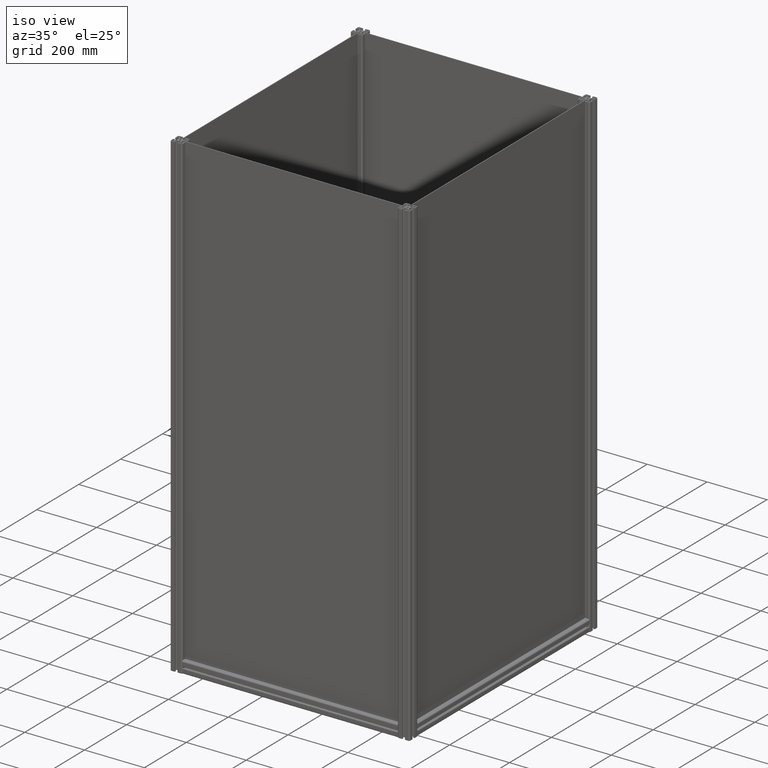
[diagram: clean part render]
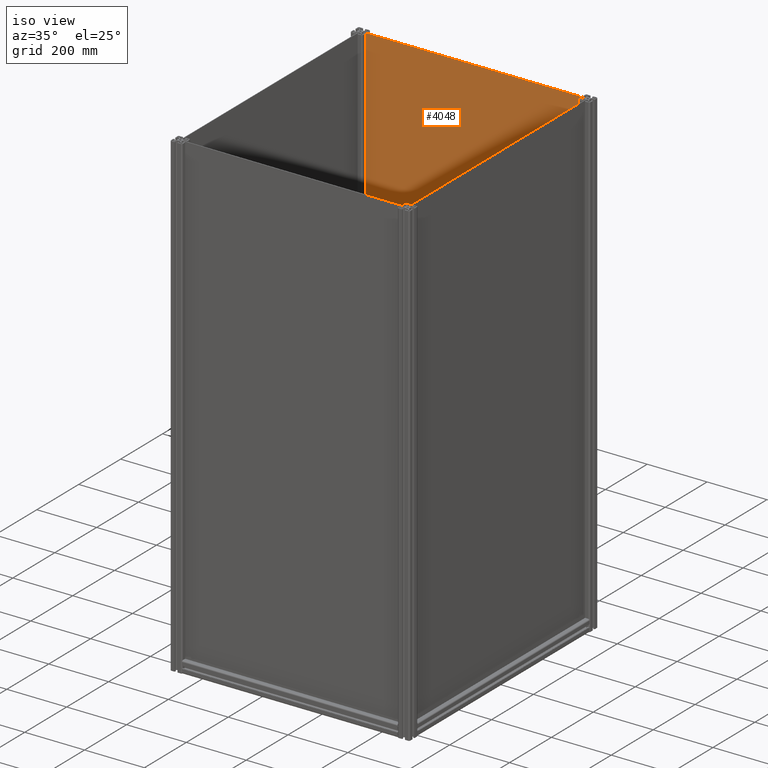
[diagram: same view with one face highlighted and labeled with its STEP entity id]
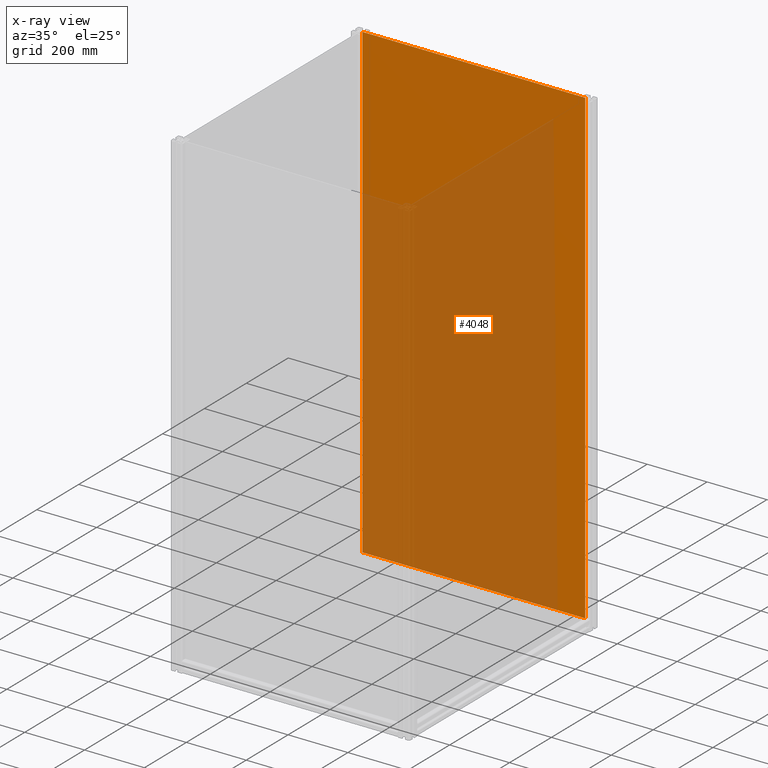
[diagram: x-ray of the same camera — body ghosted, the highlighted face saturated]
A machine part, iso view. The second image highlights one B-rep face of the part: STEP entity #4048.
The next image is the same camera in x-ray: the body ghosted, the highlighted face saturated — about 68% of this face is hidden behind the body in this view.
In plain terms, the highlighted planar face has unit normal (0, 1, 0).
Its self-contained STEP definition (entity closure, byte-faithful):
#478 = DIRECTION ( 'NONE',  ( 1.412138164112384449E-16, 1.000000000000000000, -0.000000000000000000 ) ) ;
#638 = EDGE_LOOP ( 'NONE', ( #16565, #2720, #821, #2079 ) ) ;
#821 = ORIENTED_EDGE ( 'NONE', *, *, #15634, .F. ) ;
#828 = AXIS2_PLACEMENT_3D ( 'NONE', #9908, #3699, #3489 ) ;
#986 = LINE ( 'NONE', #16158, #12035 ) ;
#1047 = EDGE_CURVE ( 'NONE', #14174, #8640, #16370, .T. ) ;
#1703 = EDGE_CURVE ( 'NONE', #8640, #5302, #986, .T. ) ;
#2079 = ORIENTED_EDGE ( 'NONE', *, *, #1047, .T. ) ;
#2153 = PLANE ( 'NONE',  #828 ) ;
#2239 = CARTESIAN_POINT ( 'NONE',  ( -600.7269624573378906, 257.8730375426625301, -2.000000000000000000 ) ) ;
#2720 = ORIENTED_EDGE ( 'NONE', *, *, #8018, .F. ) ;
#2965 = CARTESIAN_POINT ( 'NONE',  ( -28.32696245733845686, -1314.526962457337504, -2.000000000000000000 ) ) ;
#3005 = CARTESIAN_POINT ( 'NONE',  ( -28.32696245733819751, 257.8730375426625301, -2.000000000000000000 ) ) ;
#3489 = DIRECTION ( 'NONE',  ( 1.000000000000000000, 0.000000000000000000, 0.000000000000000000 ) ) ;
#3699 = DIRECTION ( 'NONE',  ( 0.000000000000000000, 0.000000000000000000, 1.000000000000000000 ) ) ;
#4048 = ADVANCED_FACE ( 'NONE', ( #4263 ), #2153, .F. ) ;
#4263 = FACE_OUTER_BOUND ( 'NONE', #638, .T. ) ;
#4551 = VERTEX_POINT ( 'NONE', #3005 ) ;
#4609 = LINE ( 'NONE', #2239, #15401 ) ;
#5302 = VERTEX_POINT ( 'NONE', #12409 ) ;
#5354 = VECTOR ( 'NONE', #6892, 1000.000000000000000 ) ;
#6892 = DIRECTION ( 'NONE',  ( -1.000000000000000000, 0.000000000000000000, 0.000000000000000000 ) ) ;
#8018 = EDGE_CURVE ( 'NONE', #4551, #5302, #4609, .T. ) ;
#8640 = VERTEX_POINT ( 'NONE', #15535 ) ;
#9088 = VECTOR ( 'NONE', #10371, 1000.000000000000000 ) ;
#9170 = LINE ( 'NONE', #11608, #9088 ) ;
#9908 = CARTESIAN_POINT ( 'NONE',  ( 0.000000000000000000, 0.000000000000000000, -2.000000000000000000 ) ) ;
#10371 = DIRECTION ( 'NONE',  ( -1.117974313196651756E-16, 1.000000000000000000, 0.000000000000000000 ) ) ;
#10463 = CARTESIAN_POINT ( 'NONE',  ( -28.32696245733845686, -1314.526962457337504, -2.000000000000000000 ) ) ;
#11608 = CARTESIAN_POINT ( 'NONE',  ( -28.32696245733819751, 257.8730375426625301, -2.000000000000000000 ) ) ;
#12035 = VECTOR ( 'NONE', #478, 1000.000000000000000 ) ;
#12409 = CARTESIAN_POINT ( 'NONE',  ( -773.1269624573380952, 257.8730375426625301, -2.000000000000000000 ) ) ;
#14174 = VERTEX_POINT ( 'NONE', #10463 ) ;
#14938 = DIRECTION ( 'NONE',  ( -1.000000000000000000, 0.000000000000000000, 0.000000000000000000 ) ) ;
#15401 = VECTOR ( 'NONE', #14938, 1000.000000000000000 ) ;
#15535 = CARTESIAN_POINT ( 'NONE',  ( -773.1269624573383226, -1314.526962457337504, -2.000000000000000000 ) ) ;
#15634 = EDGE_CURVE ( 'NONE', #14174, #4551, #9170, .T. ) ;
#16158 = CARTESIAN_POINT ( 'NONE',  ( -773.1269624573380952, 257.8730375426625301, -2.000000000000000000 ) ) ;
#16370 = LINE ( 'NONE', #2965, #5354 ) ;
#16565 = ORIENTED_EDGE ( 'NONE', *, *, #1703, .T. ) ;